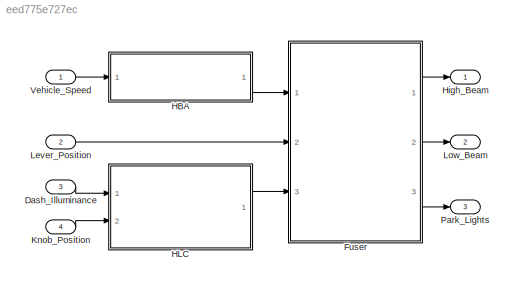
MODEL slx_eed775e727ec
KIND model
CONFIG AbsTol = auto
CONFIG EnableMultiTasking = off
CONFIG FixedStep = auto
CONFIG MaxStep = auto
CONFIG MinStep = auto
CONFIG RelTol = 1e-3
CONFIG SampleTimeConstraint = Unconstrained
CONFIG Solver = VariableStepAuto
CONFIG SolverName = VariableStepAuto
CONFIG StartTime = 0.0
CONFIG StopTime = 10.0
BLOCK [Inport] Dash_Illuminance
  IconDisplay = Port number
  Port = 3
BLOCK [ModelReference] Fuser
  ModelNameDialog = iFuser.slx
  ModelReferenceVersion = 1.1
  Ports = [3, 3]
  Variant = off
BLOCK [ModelReference] HBA
  ModelNameDialog = iHBA.slx
  ModelReferenceVersion = 1.1
  Ports = [1, 1]
  Variant = off
BLOCK [ModelReference] HLC
  ModelNameDialog = iHLC.slx
  ModelReferenceVersion = 1.1
  Ports = [2, 1]
  Variant = off
BLOCK [Outport] High_Beam
  IconDisplay = Port number
BLOCK [Inport] Knob_Position
  IconDisplay = Port number
  Port = 4
BLOCK [Inport] Lever_Position
  IconDisplay = Port number
  Port = 2
BLOCK [Outport] Low_Beam
  IconDisplay = Port number
  Port = 2
BLOCK [Outport] Park_Lights
  IconDisplay = Port number
  Port = 3
BLOCK [Inport] Vehicle_Speed
  IconDisplay = Port number
LINE Dash_Illuminance:1 -> HLC:1
LINE Fuser:1 -> High_Beam:1
LINE Fuser:2 -> Low_Beam:1
LINE Fuser:3 -> Park_Lights:1
LINE HBA:1 -> Fuser:1
LINE HLC:1 -> Fuser:3
LINE Knob_Position:1 -> HLC:2
LINE Lever_Position:1 -> Fuser:2
LINE Vehicle_Speed:1 -> HBA:1
